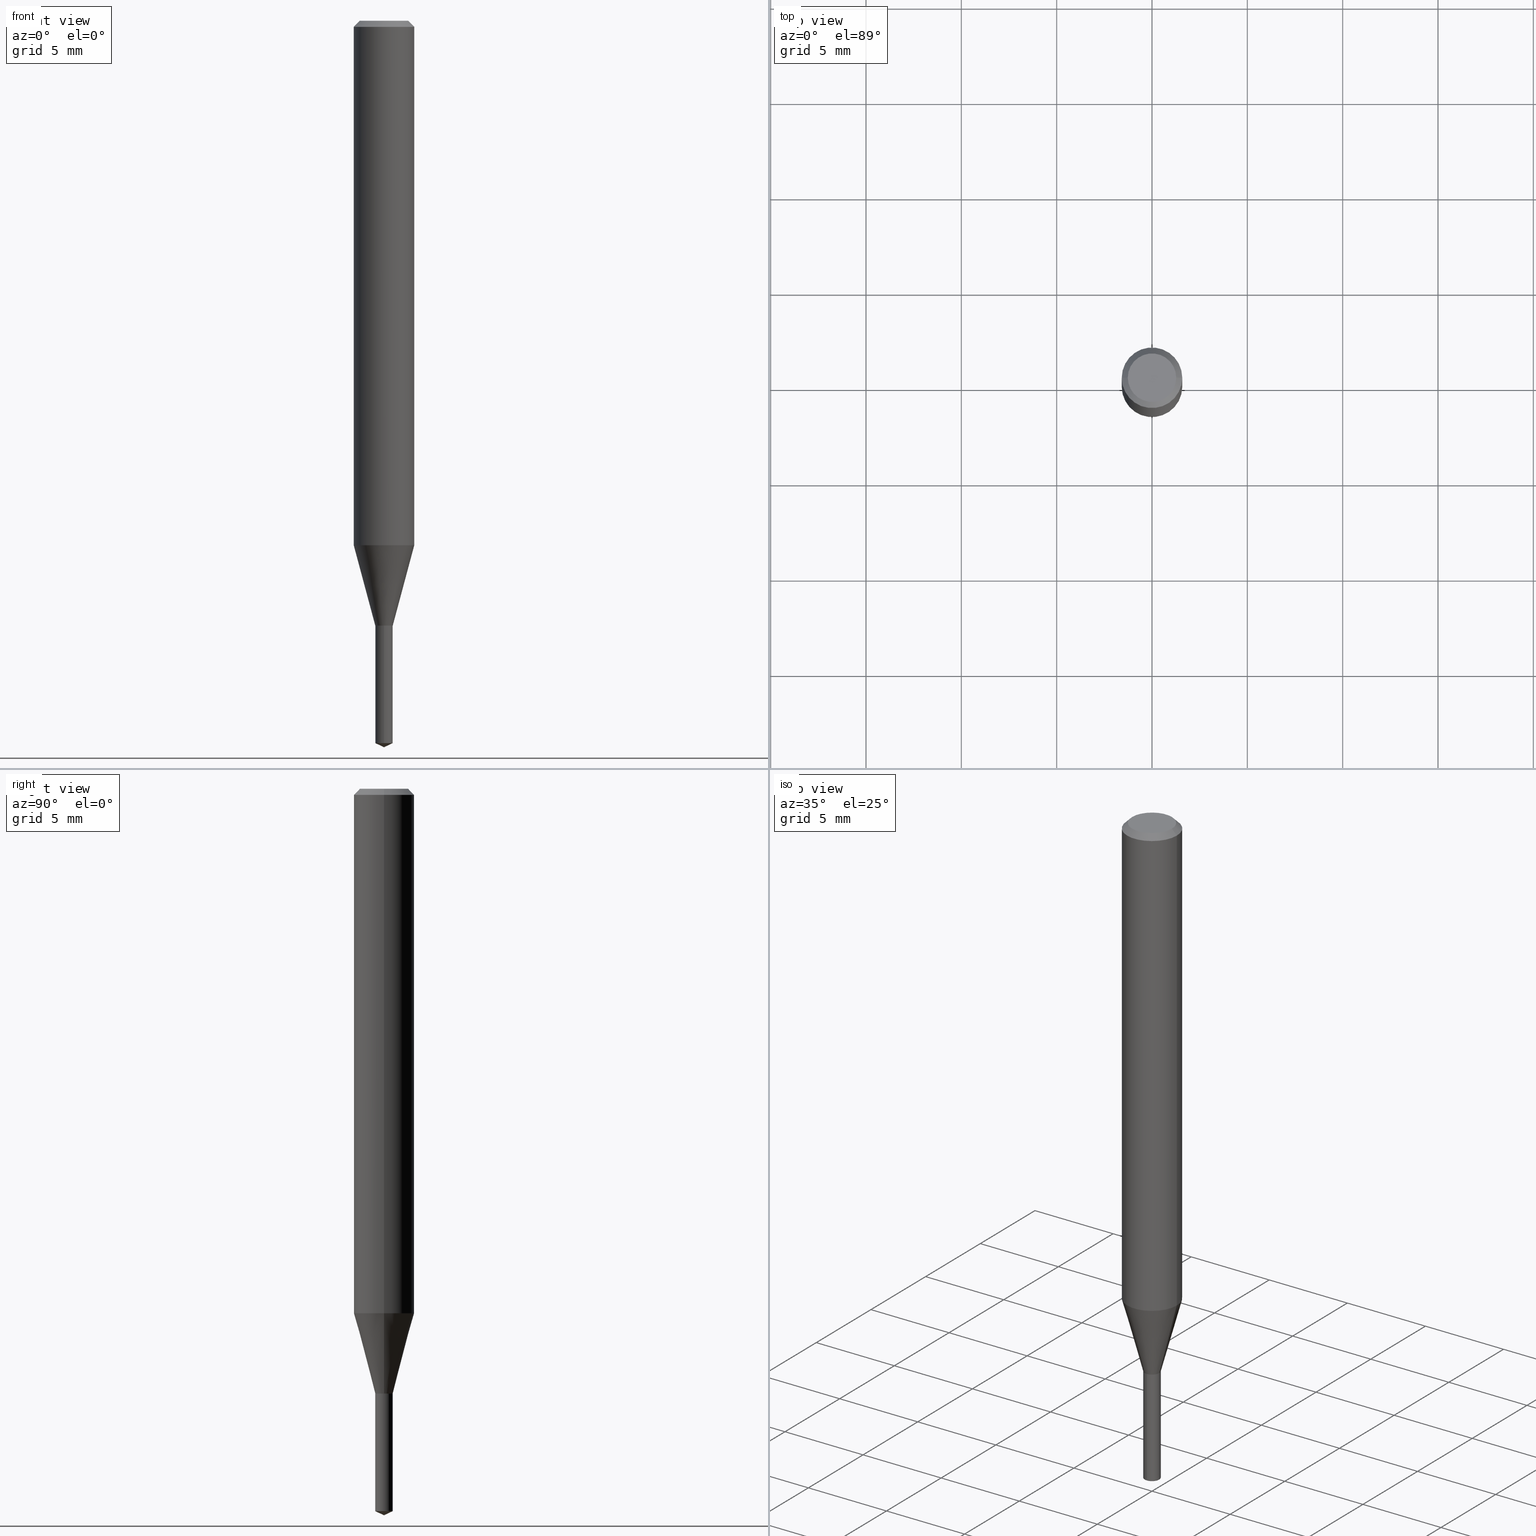
[diagram: canonical four-view strip — front | top / right | iso, engineering-drawing reading convention]
A machine part, canonical four-view strip (front | top / right | iso — engineering-drawing reading convention). The complete STEP part file that produces these views, byte-faithful:
ISO-10303-21;
HEADER;
FILE_DESCRIPTION (( 'STEP AP203' ),
    '1' );
FILE_NAME ('07146.STEP',
    '2024-04-23T19:43:46',
    ( '' ),
    ( '' ),
    'SwSTEP 2.0',
    'SolidWorks 2023',
    '' );
FILE_SCHEMA (( 'CONFIG_CONTROL_DESIGN' ));
ENDSEC;

DATA;
#1 = ORIENTED_EDGE ( 'NONE', *, *, #238, .F. ) ;
#2 = PERSON_AND_ORGANIZATION ( #31, #451 ) ;
#3 = CALENDAR_DATE ( 2024, 23, 4 ) ;
#4 = VECTOR ( 'NONE', #106, 39.37007874015748854 ) ;
#5 = EDGE_CURVE ( 'NONE', #13, #95, #232, .T. ) ;
#6 = DIRECTION ( 'NONE',  ( 1.000000000000000000, -6.982962677686265922E-15, 0.000000000000000000 ) ) ;
#7 = AXIS2_PLACEMENT_3D ( 'NONE', #151, #372, #6 ) ;
#8 = ORIENTED_EDGE ( 'NONE', *, *, #94, .F. ) ;
#9 = DIRECTION ( 'NONE',  ( 0.000000000000000000, 0.000000000000000000, 1.000000000000000000 ) ) ;
#10 = EDGE_LOOP ( 'NONE', ( #444, #199, #452, #407 ) ) ;
#11 = MANIFOLD_SOLID_BREP ( 'Body-Move/Copy2[1]', #351 ) ;
#12 = DATE_TIME_ROLE ( 'classification_date' ) ;
#13 = VERTEX_POINT ( 'NONE', #282 ) ;
#14 = CIRCLE ( 'NONE', #423, 0.06250000000000012490 ) ;
#15 = AXIS2_PLACEMENT_3D ( 'NONE', #175, #21, #324 ) ;
#16 = FACE_OUTER_BOUND ( 'NONE', #490, .T. ) ;
#17 = CYLINDRICAL_SURFACE ( 'NONE', #450, 0.06250000000000006939 ) ;
#18 = SHAPE_DEFINITION_REPRESENTATION ( #91, #93 ) ;
#19 = CYLINDRICAL_SURFACE ( 'NONE', #328, 0.01799999999999999864 ) ;
#20 = EDGE_CURVE ( 'NONE', #375, #119, #49, .T. ) ;
#21 = DIRECTION ( 'NONE',  ( -2.445468806185136597E-29, 3.491481338843145583E-15, 1.000000000000000000 ) ) ;
#22 = AXIS2_PLACEMENT_3D ( 'NONE', #299, #395, #476 ) ;
#23 = DIRECTION ( 'NONE',  ( -2.445468806185136597E-29, 3.491481338843145583E-15, 1.000000000000000000 ) ) ;
#24 = CARTESIAN_POINT ( 'NONE',  ( -0.01800000000000000558, -4.232962499778271317E-15, -1.249000000000000332 ) ) ;
#25 = EDGE_CURVE ( 'NONE', #162, #200, #447, .T. ) ;
#26 = ORIENTED_EDGE ( 'NONE', *, *, #67, .T. ) ;
#27 = CARTESIAN_POINT ( 'NONE',  ( 3.664436846372539659E-29, -5.242615654312978645E-15, -1.500000000000000222 ) ) ;
#28 = CIRCLE ( 'NONE', #112, 0.04999999999999999584 ) ;
#29 = DIRECTION ( 'NONE',  ( -2.445468806185136597E-29, 3.491481338843145583E-15, 1.000000000000000000 ) ) ;
#30 = LINE ( 'NONE', #37, #368 ) ;
#31 = PERSON ( 'UNSPECIFIED', 'UNSPECIFIED', 'UNSPECIFIED', ('UNSPECIFIED'), ('UNSPECIFIED'), ('UNSPECIFIED') ) ;
#32 = ORIENTED_EDGE ( 'NONE', *, *, #316, .T. ) ;
#33 = CARTESIAN_POINT ( 'NONE',  ( 0.01800000000000000558, -4.486553520413442454E-15, -1.249000000000000332 ) ) ;
#34 = ADVANCED_FACE ( 'NONE', ( #105 ), #460, .T. ) ;
#35 = CARTESIAN_POINT ( 'NONE',  ( -0.01800000000000000558, -3.971974269699745884E-15, -1.249000000000000332 ) ) ;
#36 = AXIS2_PLACEMENT_3D ( 'NONE', #370, #443, #271 ) ;
#37 = CARTESIAN_POINT ( 'NONE',  ( 1.278976924368449190E-16, 0.01799999999999615796, -1.100000000000000089 ) ) ;
#38 = ORIENTED_EDGE ( 'NONE', *, *, #406, .F. ) ;
#39 = DATE_AND_TIME ( #152, #212 ) ;
#40 = ORIENTED_EDGE ( 'NONE', *, *, #20, .T. ) ;
#41 = CC_DESIGN_PERSON_AND_ORGANIZATION_ASSIGNMENT ( #348, #410, ( #263 ) ) ;
#42 = PERSON_AND_ORGANIZATION ( #31, #451 ) ;
#43 = EDGE_CURVE ( 'NONE', #404, #333, #14, .T. ) ;
#44 = CC_DESIGN_SECURITY_CLASSIFICATION ( #263, ( #147 ) ) ;
#45 = VERTEX_POINT ( 'NONE', #228 ) ;
#46 = ADVANCED_FACE ( 'NONE', ( #81 ), #252, .T. ) ;
#47 = ORIENTED_EDGE ( 'NONE', *, *, #142, .F. ) ;
#48 = DIRECTION ( 'NONE',  ( -2.445468806185136597E-29, 3.491481338843145583E-15, 1.000000000000000000 ) ) ;
#49 = CIRCLE ( 'NONE', #448, 0.01799999999999998476 ) ;
#50 = AXIS2_PLACEMENT_3D ( 'NONE', #391, #354, #217 ) ;
#51 = CARTESIAN_POINT ( 'NONE',  ( 3.664436846372539659E-29, -5.242615654312978645E-15, -1.500000000000000222 ) ) ;
#52 = ORIENTED_EDGE ( 'NONE', *, *, #125, .T. ) ;
#53 = PERSON_AND_ORGANIZATION ( #31, #451 ) ;
#54 = CC_DESIGN_PERSON_AND_ORGANIZATION_ASSIGNMENT ( #53, #179, ( #57 ) ) ;
#55 = ADVANCED_FACE ( 'NONE', ( #432 ), #155, .T. ) ;
#56 = DIRECTION ( 'NONE',  ( -2.445468806185136877E-29, 3.491481338843145188E-15, 1.000000000000000000 ) ) ;
#57 = PRODUCT ( '07146', '07146', '', ( #267 ) ) ;
#58 = CARTESIAN_POINT ( 'NONE',  ( -0.01750000000000000167, -3.716284493969442853E-15, -1.100000000000000089 ) ) ;
#59 = CC_DESIGN_DATE_AND_TIME_ASSIGNMENT ( #449, #402, ( #455 ) ) ;
#60 = DIRECTION ( 'NONE',  ( -2.445468806185136877E-29, 3.491481338843145188E-15, 1.000000000000000000 ) ) ;
#61 = VECTOR ( 'NONE', #56, 39.37007874015748143 ) ;
#62 = DIRECTION ( 'NONE',  ( 1.000000000000000000, -6.982962677686250144E-15, 0.000000000000000000 ) ) ;
#63 = EDGE_CURVE ( 'NONE', #182, #158, #465, .T. ) ;
#64 = CARTESIAN_POINT ( 'NONE',  ( 3.054390538925236264E-29, -4.360860192215089464E-15, -1.249000000000000332 ) ) ;
#65 = CARTESIAN_POINT ( 'NONE',  ( 2.688792952400557567E-29, -3.838883732058038598E-15, -1.099499999999999922 ) ) ;
#66 = CIRCLE ( 'NONE', #389, 0.01800000000000000211 ) ;
#67 = EDGE_CURVE ( 'NONE', #254, #382, #461, .T. ) ;
#68 = FACE_OUTER_BOUND ( 'NONE', #381, .T. ) ;
#69 = ORIENTED_EDGE ( 'NONE', *, *, #280, .T. ) ;
#70 = DIRECTION ( 'NONE',  ( -0.7071067811865453523, 2.468850131082234184E-15, -0.7071067811865496822 ) ) ;
#71 = APPROVAL_DATE_TIME ( #481, #216 ) ;
#72 = CARTESIAN_POINT ( 'NONE',  ( 0.06250000000000001388, -4.800786840909313294E-16, -0.01250000000000008916 ) ) ;
#73 = ORIENTED_EDGE ( 'NONE', *, *, #281, .T. ) ;
#74 = VECTOR ( 'NONE', #330, 39.37007874015748854 ) ;
#75 = CC_DESIGN_PERSON_AND_ORGANIZATION_ASSIGNMENT ( #201, #237, ( #147 ) ) ;
#76 = CARTESIAN_POINT ( 'NONE',  ( 2.688792952400557567E-29, -3.838883732058038598E-15, -1.099499999999999922 ) ) ;
#77 = EDGE_CURVE ( 'NONE', #254, #119, #161, .T. ) ;
#78 = DIRECTION ( 'NONE',  ( -2.445468806185136597E-29, 3.491481338843145583E-15, 1.000000000000000000 ) ) ;
#79 =( NAMED_UNIT ( * ) SI_UNIT ( $, .STERADIAN. ) SOLID_ANGLE_UNIT ( ) );
#80 = ORIENTED_EDGE ( 'NONE', *, *, #406, .T. ) ;
#81 = FACE_OUTER_BOUND ( 'NONE', #260, .T. ) ;
#82 = APPROVAL_ROLE ( '' ) ;
#83 = AXIS2_PLACEMENT_3D ( 'NONE', #266, #229, #334 ) ;
#84 = DIRECTION ( 'NONE',  ( 1.000000000000000000, -6.982962677686276966E-15, 0.000000000000000000 ) ) ;
#85 = CC_DESIGN_PERSON_AND_ORGANIZATION_ASSIGNMENT ( #2, #306, ( #455 ) ) ;
#86 = DIRECTION ( 'NONE',  ( -2.445468806185136597E-29, 3.491481338843145583E-15, 1.000000000000000000 ) ) ;
#87 = AXIS2_PLACEMENT_3D ( 'NONE', #319, #126, #284 ) ;
#88 = CIRCLE ( 'NONE', #7, 0.06250000000000001388 ) ;
#89 = CARTESIAN_POINT ( 'NONE',  ( 2.690015686803650369E-29, -3.840629472727460101E-15, -1.100000000000000089 ) ) ;
#90 = EDGE_CURVE ( 'NONE', #158, #182, #28, .T. ) ;
#91 = PRODUCT_DEFINITION_SHAPE ( 'NONE', 'NONE',  #455 ) ;
#92 = UNCERTAINTY_MEASURE_WITH_UNIT (LENGTH_MEASURE( 1.000000000000000082E-05 ), #283, 'distance_accuracy_value', 'NONE');
#93 = ADVANCED_BREP_SHAPE_REPRESENTATION ( '07146', ( #11, #485, #349 ), #286 ) ;
#94 = EDGE_CURVE ( 'NONE', #95, #119, #209, .T. ) ;
#95 = VERTEX_POINT ( 'NONE', #218 ) ;
#96 = PERSON_AND_ORGANIZATION ( #31, #451 ) ;
#97 = DIRECTION ( 'NONE',  ( -2.445468806185136597E-29, 3.491481338843145583E-15, 1.000000000000000000 ) ) ;
#98 = ORIENTED_EDGE ( 'NONE', *, *, #43, .F. ) ;
#99 = DIRECTION ( 'NONE',  ( -6.328713451373426965E-15, -0.9063077870366565980, 0.4226182617406848419 ) ) ;
#100 = ORIENTED_EDGE ( 'NONE', *, *, #417, .F. ) ;
#101 = CARTESIAN_POINT ( 'NONE',  ( 0.06250000000000001388, -4.724246415962604812E-16, -0.01250000000000008916 ) ) ;
#102 = VECTOR ( 'NONE', #489, 39.37007874015748143 ) ;
#103 = ADVANCED_FACE ( 'NONE', ( #414 ), #305, .F. ) ;
#104 = ORIENTED_EDGE ( 'NONE', *, *, #136, .T. ) ;
#105 = FACE_OUTER_BOUND ( 'NONE', #308, .T. ) ;
#106 = DIRECTION ( 'NONE',  ( -0.2588190451025281225, 5.211531920934590485E-15, 0.9659258262890662028 ) ) ;
#107 = COORDINATED_UNIVERSAL_TIME_OFFSET ( 5, 0, .BEHIND. ) ;
#108 = CARTESIAN_POINT ( 'NONE',  ( 3.670009284250152623E-29, -5.234704973442197256E-15, -1.500000000000000222 ) ) ;
#109 = CARTESIAN_POINT ( 'NONE',  ( 0.06250000000000006939, -4.364351673553921624E-16, 3.047610484872463374E-30 ) ) ;
#110 = ORIENTED_EDGE ( 'NONE', *, *, #25, .F. ) ;
#111 = ORIENTED_EDGE ( 'NONE', *, *, #184, .T. ) ;
#112 = AXIS2_PLACEMENT_3D ( 'NONE', #289, #251, #213 ) ;
#113 = ADVANCED_FACE ( 'NONE', ( #408 ), #473, .T. ) ;
#114 = APPROVAL_STATUS ( 'not_yet_approved' ) ;
#115 = FACE_OUTER_BOUND ( 'NONE', #441, .T. ) ;
#116 = APPROVAL ( #344, 'UNSPECIFIED' ) ;
#117 = ORIENTED_EDGE ( 'NONE', *, *, #250, .F. ) ;
#118 = ADVANCED_FACE ( 'NONE', ( #188 ), #403, .F. ) ;
#119 = VERTEX_POINT ( 'NONE', #425 ) ;
#120 = DIRECTION ( 'NONE',  ( -2.442957897581693293E-29, 3.495077102875319228E-15, 1.000000000000000000 ) ) ;
#121 = ORIENTED_EDGE ( 'NONE', *, *, #5, .T. ) ;
#122 = ADVANCED_FACE ( 'NONE', ( #244 ), #19, .T. ) ;
#123 = CARTESIAN_POINT ( 'NONE',  ( 3.054390538925236264E-29, -4.360860192215089464E-15, -1.249000000000000332 ) ) ;
#124 = AXIS2_PLACEMENT_3D ( 'NONE', #64, #97, #62 ) ;
#125 = EDGE_CURVE ( 'NONE', #200, #202, #272, .T. ) ;
#126 = DIRECTION ( 'NONE',  ( -2.438088387897960049E-29, 3.491481338843145188E-15, 1.000000000000000000 ) ) ;
#127 = DIRECTION ( 'NONE',  ( -0.7071067811865112684, 7.493145998870223209E-15, 0.7071067811865837660 ) ) ;
#128 = ORIENTED_EDGE ( 'NONE', *, *, #142, .T. ) ;
#129 = AXIS2_PLACEMENT_3D ( 'NONE', #140, #23, #470 ) ;
#130 = CC_DESIGN_APPROVAL ( #116, ( #455 ) ) ;
#131 = ADVANCED_FACE ( 'NONE', ( #422 ), #17, .T. ) ;
#132 = ADVANCED_FACE ( 'NONE', ( #327 ), #246, .T. ) ;
#133 = VERTEX_POINT ( 'NONE', #385 ) ;
#134 = DIRECTION ( 'NONE',  ( -2.445468806185136597E-29, 3.491481338843145583E-15, 1.000000000000000000 ) ) ;
#135 = DIRECTION ( 'NONE',  ( 6.982962677686265922E-15, 1.000000000000000000, -3.495077102875319228E-15 ) ) ;
#136 = EDGE_CURVE ( 'NONE', #13, #375, #208, .T. ) ;
#137 = CARTESIAN_POINT ( 'NONE',  ( 3.646693786264862910E-29, -5.209324251937156062E-15, -1.491606462153210577 ) ) ;
#138 = CONICAL_SURFACE ( 'NONE', #211, 0.01750000000000000167, 0.7853981633973970977 ) ;
#139 = CARTESIAN_POINT ( 'NONE',  ( -0.01799999999999998476, -3.971974269699745884E-15, -1.099499999999999922 ) ) ;
#140 = CARTESIAN_POINT ( 'NONE',  ( 3.054390538925236264E-29, -4.360860192215089464E-15, -1.249000000000000332 ) ) ;
#141 = DIRECTION ( 'NONE',  ( -2.442957897581693293E-29, 3.495077102875318834E-15, 1.000000000000000000 ) ) ;
#142 = EDGE_CURVE ( 'NONE', #333, #404, #440, .T. ) ;
#143 = PERSON_AND_ORGANIZATION ( #31, #451 ) ;
#144 = ORIENTED_EDGE ( 'NONE', *, *, #136, .F. ) ;
#145 = DIRECTION ( 'NONE',  ( 1.000000000000000000, -6.982962677686276966E-15, 0.000000000000000000 ) ) ;
#146 = CIRCLE ( 'NONE', #203, 0.01799999999999999864 ) ;
#147 = PRODUCT_DEFINITION_FORMATION_WITH_SPECIFIED_SOURCE ( 'ANY', '', #57, .NOT_KNOWN. ) ;
#148 = DIRECTION ( 'NONE',  ( -6.982962677686266711E-15, -1.000000000000000000, 3.520397390770289392E-15 ) ) ;
#149 = COORDINATED_UNIVERSAL_TIME_OFFSET ( 5, 0, .BEHIND. ) ;
#150 = DIRECTION ( 'NONE',  ( -2.445468806185136877E-29, 3.491481338843145188E-15, 1.000000000000000000 ) ) ;
#151 = CARTESIAN_POINT ( 'NONE',  ( 3.056836007731442729E-31, -4.364351673553962300E-17, -0.01250000000000008916 ) ) ;
#152 = CALENDAR_DATE ( 2024, 23, 4 ) ;
#153 = ORIENTED_EDGE ( 'NONE', *, *, #287, .F. ) ;
#154 = APPROVAL_STATUS ( 'not_yet_approved' ) ;
#155 = CONICAL_SURFACE ( 'NONE', #172, 0.01800000000000000558, 0.2617993877991570684 ) ;
#156 = AXIS2_PLACEMENT_3D ( 'NONE', #427, #288, #171 ) ;
#157 = APPROVAL_PERSON_ORGANIZATION ( #413, #474, #82 ) ;
#158 = VERTEX_POINT ( 'NONE', #384 ) ;
#159 = DIRECTION ( 'NONE',  ( 1.000000000000000000, 0.000000000000000000, 0.000000000000000000 ) ) ;
#160 = ORIENTED_EDGE ( 'NONE', *, *, #275, .T. ) ;
#161 = LINE ( 'NONE', #462, #409 ) ;
#162 = VERTEX_POINT ( 'NONE', #51 ) ;
#163 = DIRECTION ( 'NONE',  ( -6.982962677686265133E-15, -1.000000000000000000, 0.000000000000000000 ) ) ;
#164 = VECTOR ( 'NONE', #127, 39.37007874015748143 ) ;
#165 = AXIS2_PLACEMENT_3D ( 'NONE', #297, #436, #364 ) ;
#166 = PLANE ( 'NONE',  #87 ) ;
#167 = ORIENTED_EDGE ( 'NONE', *, *, #316, .F. ) ;
#168 = EDGE_CURVE ( 'NONE', #382, #375, #214, .T. ) ;
#169 = CARTESIAN_POINT ( 'NONE',  ( -0.01799999999999999517, 1.278976924368179991E-16, -8.854083162458827436E-31 ) ) ;
#170 = CARTESIAN_POINT ( 'NONE',  ( 2.690015686803650369E-29, -3.840629472727460101E-15, -1.100000000000000089 ) ) ;
#171 = DIRECTION ( 'NONE',  ( 1.000000000000000000, -6.982962677686276966E-15, 0.000000000000000000 ) ) ;
#172 = AXIS2_PLACEMENT_3D ( 'NONE', #123, #318, #360 ) ;
#173 = PRODUCT_RELATED_PRODUCT_CATEGORY ( 'detail', '', ( #57 ) ) ;
#174 = CIRCLE ( 'NONE', #486, 0.01750000000000000167 ) ;
#175 = CARTESIAN_POINT ( 'NONE',  ( 3.056836007731442729E-31, -4.364351673553962300E-17, -0.01250000000000008916 ) ) ;
#176 = DIRECTION ( 'NONE',  ( 1.000000000000000000, -6.982962677686264344E-15, 0.000000000000000000 ) ) ;
#177 = CARTESIAN_POINT ( 'NONE',  ( 2.690015686803650369E-29, -3.840629472727460101E-15, -1.100000000000000089 ) ) ;
#178 = DIRECTION ( 'NONE',  ( 1.000000000000000000, -6.982962677686266711E-15, 4.876176775795935793E-29 ) ) ;
#179 = PERSON_AND_ORGANIZATION_ROLE ( 'design_owner' ) ;
#180 = ORIENTED_EDGE ( 'NONE', *, *, #280, .F. ) ;
#181 = DIRECTION ( 'NONE',  ( -2.442957897581693293E-29, 3.495077102875319228E-15, 1.000000000000000000 ) ) ;
#182 = VERTEX_POINT ( 'NONE', #210 ) ;
#183 = CARTESIAN_POINT ( 'NONE',  ( -8.265746106709734507E-48, 1.180129479067563789E-33, 3.380025165646692144E-19 ) ) ;
#184 = EDGE_CURVE ( 'NONE', #300, #463, #356, .T. ) ;
#185 = DIRECTION ( 'NONE',  ( 1.000000000000000000, -6.982962677686264344E-15, 0.000000000000000000 ) ) ;
#186 = DIRECTION ( 'NONE',  ( 0.7071067811865453523, -7.319954787623248157E-15, -0.7071067811865496822 ) ) ;
#187 = ORIENTED_EDGE ( 'NONE', *, *, #424, .F. ) ;
#188 = FACE_OUTER_BOUND ( 'NONE', #310, .T. ) ;
#189 = DIRECTION ( 'NONE',  ( 1.000000000000000000, -6.982962677686258822E-15, 0.000000000000000000 ) ) ;
#190 = EDGE_LOOP ( 'NONE', ( #265, #104, #239, #8 ) ) ;
#191 = FACE_OUTER_BOUND ( 'NONE', #223, .T. ) ;
#192 = AXIS2_PLACEMENT_3D ( 'NONE', #419, #383, #84 ) ;
#193 = CIRCLE ( 'NONE', #285, 0.01799999999999998476 ) ;
#194 = CYLINDRICAL_SURFACE ( 'NONE', #227, 0.06250000000000006939 ) ;
#195 = ADVANCED_FACE ( 'NONE', ( #469 ), #138, .T. ) ;
#196 = ORIENTED_EDGE ( 'NONE', *, *, #125, .F. ) ;
#197 = APPROVAL_DATE_TIME ( #39, #116 ) ;
#198 = CARTESIAN_POINT ( 'NONE',  ( 0.000000000000000000, 0.000000000000000000, 0.000000000000000000 ) ) ;
#199 = ORIENTED_EDGE ( 'NONE', *, *, #43, .T. ) ;
#200 = VERTEX_POINT ( 'NONE', #290 ) ;
#201 = PERSON_AND_ORGANIZATION ( #31, #451 ) ;
#202 = VERTEX_POINT ( 'NONE', #255 ) ;
#203 = AXIS2_PLACEMENT_3D ( 'NONE', #361, #256, #225 ) ;
#204 = ORIENTED_EDGE ( 'NONE', *, *, #322, .F. ) ;
#205 = DIRECTION ( 'NONE',  ( 1.000000000000000000, -6.982962677686258822E-15, 0.000000000000000000 ) ) ;
#206 = AXIS2_PLACEMENT_3D ( 'NONE', #230, #350, #135 ) ;
#207 = ADVANCED_FACE ( 'NONE', ( #16 ), #166, .F. ) ;
#208 = LINE ( 'NONE', #58, #164 ) ;
#209 = LINE ( 'NONE', #353, #475 ) ;
#210 = CARTESIAN_POINT ( 'NONE',  ( 0.04999999999999999584, -4.077247707424184705E-16, 3.380025165673154903E-19 ) ) ;
#211 = AXIS2_PLACEMENT_3D ( 'NONE', #170, #134, #468 ) ;
#212 = LOCAL_TIME ( 15, 43, 46.00000000000000000, #149 ) ;
#213 = DIRECTION ( 'NONE',  ( 1.000000000000000000, -6.982962677686265922E-15, 4.876194921942043128E-29 ) ) ;
#214 = LINE ( 'NONE', #169, #61 ) ;
#215 = LINE ( 'NONE', #405, #253 ) ;
#216 = APPROVAL ( #114, 'UNSPECIFIED' ) ;
#217 = DIRECTION ( 'NONE',  ( -6.982962677686265133E-15, -1.000000000000000000, 0.000000000000000000 ) ) ;
#218 = CARTESIAN_POINT ( 'NONE',  ( 0.01750000000000000167, -3.962831319586970084E-15, -1.100000000000000089 ) ) ;
#219 = CYLINDRICAL_SURFACE ( 'NONE', #165, 0.01799999999999999517 ) ;
#220 = EDGE_LOOP ( 'NONE', ( #312, #315, #338, #378 ) ) ;
#221 = DIRECTION ( 'NONE',  ( 1.000000000000000000, -6.982962677686265922E-15, 4.876194921942043128E-29 ) ) ;
#222 = AXIS2_PLACEMENT_3D ( 'NONE', #247, #401, #148 ) ;
#223 = EDGE_LOOP ( 'NONE', ( #302, #458, #40, #264 ) ) ;
#224 = CARTESIAN_POINT ( 'NONE',  ( 2.648256223356403194E-29, -3.781008026329371675E-15, -1.082923739063189839 ) ) ;
#225 = DIRECTION ( 'NONE',  ( -6.982962677686265133E-15, -1.000000000000000000, 0.000000000000000000 ) ) ;
#226 = VECTOR ( 'NONE', #150, 39.37007874015748143 ) ;
#227 = AXIS2_PLACEMENT_3D ( 'NONE', #198, #78, #374 ) ;
#228 = CARTESIAN_POINT ( 'NONE',  ( 1.278976924368545333E-16, 0.01799999999999615796, -1.100000000000000089 ) ) ;
#229 = DIRECTION ( 'NONE',  ( -2.445468806185136597E-29, 3.491481338843145583E-15, 1.000000000000000000 ) ) ;
#230 = CARTESIAN_POINT ( 'NONE',  ( 2.690015686803650369E-29, -3.840629472727460101E-15, -1.100000000000000089 ) ) ;
#231 = CARTESIAN_POINT ( 'NONE',  ( -0.06250000000000001388, -1.468236561682391621E-15, -0.01250000000000008916 ) ) ;
#232 = CIRCLE ( 'NONE', #192, 0.01750000000000000167 ) ;
#233 = AXIS2_PLACEMENT_3D ( 'NONE', #183, #257, #221 ) ;
#234 = APPROVAL_ROLE ( '' ) ;
#235 =( LENGTH_UNIT ( ) NAMED_UNIT ( * ) SI_UNIT ( $, .METRE. ) );
#236 = SECURITY_CLASSIFICATION_LEVEL ( 'unclassified' ) ;
#237 = PERSON_AND_ORGANIZATION_ROLE ( 'design_supplier' ) ;
#238 = EDGE_CURVE ( 'NONE', #45, #133, #146, .T. ) ;
#239 = ORIENTED_EDGE ( 'NONE', *, *, #321, .F. ) ;
#240 = AXIS2_PLACEMENT_3D ( 'NONE', #388, #464, #176 ) ;
#241 = ORIENTED_EDGE ( 'NONE', *, *, #238, .T. ) ;
#242 = ORIENTED_EDGE ( 'NONE', *, *, #250, .T. ) ;
#243 = EDGE_LOOP ( 'NONE', ( #355, #277, #117, #180 ) ) ;
#244 = FACE_OUTER_BOUND ( 'NONE', #243, .T. ) ;
#245 = ORIENTED_EDGE ( 'NONE', *, *, #63, .F. ) ;
#246 = CONICAL_SURFACE ( 'NONE', #156, 0.01750000000000000167, 0.7853981633973970977 ) ;
#247 = CARTESIAN_POINT ( 'NONE',  ( -9.251224594084451282E-28, 1.323628004292452236E-13, 37.87007874015748143 ) ) ;
#248 = APPROVAL_DATE_TIME ( #387, #474 ) ;
#249 = DIRECTION ( 'NONE',  ( -6.982962677686265133E-15, -1.000000000000000000, 0.000000000000000000 ) ) ;
#250 = EDGE_CURVE ( 'NONE', #133, #45, #430, .T. ) ;
#251 = DIRECTION ( 'NONE',  ( -2.445468806185136597E-29, 3.491481338843145583E-15, 1.000000000000000000 ) ) ;
#252 = CONICAL_SURFACE ( 'NONE', #222, 84.42940631927828576, 1.134464013796333770 ) ;
#253 = VECTOR ( 'NONE', #70, 39.37007874015748143 ) ;
#254 = VERTEX_POINT ( 'NONE', #480 ) ;
#255 = CARTESIAN_POINT ( 'NONE',  ( -1.256933281983163574E-16, -0.01800000000000521669, -1.491606462153210577 ) ) ;
#256 = DIRECTION ( 'NONE',  ( -2.442957897581693293E-29, 3.495077102875318834E-15, 1.000000000000000000 ) ) ;
#257 = DIRECTION ( 'NONE',  ( -2.445468806185136597E-29, 3.491481338843145583E-15, 1.000000000000000000 ) ) ;
#258 = CARTESIAN_POINT ( 'NONE',  ( -1.256933281983258730E-16, -0.01800000000000383932, -1.100000000000000089 ) ) ;
#259 = EDGE_CURVE ( 'NONE', #254, #333, #336, .T. ) ;
#260 = EDGE_LOOP ( 'NONE', ( #110, #160, #196 ) ) ;
#261 = ORIENTED_EDGE ( 'NONE', *, *, #20, .F. ) ;
#262 = DIRECTION ( 'NONE',  ( -6.982962677686265133E-15, -1.000000000000000000, 0.000000000000000000 ) ) ;
#263 = SECURITY_CLASSIFICATION ( '', '', #236 ) ;
#264 = ORIENTED_EDGE ( 'NONE', *, *, #77, .F. ) ;
#265 = ORIENTED_EDGE ( 'NONE', *, *, #365, .T. ) ;
#266 = CARTESIAN_POINT ( 'NONE',  ( 0.000000000000000000, 0.000000000000000000, 0.000000000000000000 ) ) ;
#267 = MECHANICAL_CONTEXT ( 'NONE', #445, 'mechanical' ) ;
#268 = ORIENTED_EDGE ( 'NONE', *, *, #365, .F. ) ;
#269 = COORDINATED_UNIVERSAL_TIME_OFFSET ( 5, 0, .BEHIND. ) ;
#270 = CYLINDRICAL_SURFACE ( 'NONE', #83, 0.01799999999999999517 ) ;
#271 = DIRECTION ( 'NONE',  ( -1.000000000000000000, 6.982962677686265922E-15, -4.876176775795935793E-29 ) ) ;
#272 = CIRCLE ( 'NONE', #50, 0.01800000000000000211 ) ;
#273 = LOCAL_TIME ( 15, 43, 46.00000000000000000, #107 ) ;
#274 = CC_DESIGN_APPROVAL ( #216, ( #147 ) ) ;
#275 = EDGE_CURVE ( 'NONE', #162, #202, #301, .T. ) ;
#276 = PERSON_AND_ORGANIZATION_ROLE ( 'creator' ) ;
#277 = ORIENTED_EDGE ( 'NONE', *, *, #417, .T. ) ;
#278 = CLOSED_SHELL ( 'NONE', ( #132, #113, #421, #34, #416, #357, #55, #131, #483, #103, #207, #195 ) ) ;
#279 = DIRECTION ( 'NONE',  ( -1.000000000000000000, 6.982962677686265922E-15, 0.000000000000000000 ) ) ;
#280 = EDGE_CURVE ( 'NONE', #202, #133, #438, .T. ) ;
#281 = EDGE_CURVE ( 'NONE', #182, #463, #359, .T. ) ;
#282 = CARTESIAN_POINT ( 'NONE',  ( -0.01750000000000000167, -3.713635266795331652E-15, -1.100000000000000089 ) ) ;
#283 =( CONVERSION_BASED_UNIT ( 'INCH', #345 ) LENGTH_UNIT ( ) NAMED_UNIT ( #341 ) );
#284 = DIRECTION ( 'NONE',  ( 1.000000000000000000, -6.982962677686265922E-15, 4.876176775795935793E-29 ) ) ;
#285 = AXIS2_PLACEMENT_3D ( 'NONE', #65, #478, #189 ) ;
#286 =( GEOMETRIC_REPRESENTATION_CONTEXT ( 3 ) GLOBAL_UNCERTAINTY_ASSIGNED_CONTEXT ( ( #92 ) ) GLOBAL_UNIT_ASSIGNED_CONTEXT ( ( #283, #459, #79 ) ) REPRESENTATION_CONTEXT ( 'NONE', 'WORKASPACE' ) );
#287 = EDGE_CURVE ( 'NONE', #333, #463, #326, .T. ) ;
#288 = DIRECTION ( 'NONE',  ( -2.445468806185136597E-29, 3.491481338843145583E-15, 1.000000000000000000 ) ) ;
#289 = CARTESIAN_POINT ( 'NONE',  ( -8.265746106709734507E-48, 1.180129479067563789E-33, 3.380025165646692144E-19 ) ) ;
#290 = CARTESIAN_POINT ( 'NONE',  ( 1.278976924368545333E-16, 0.01799999999999479447, -1.491606462153210577 ) ) ;
#291 = CARTESIAN_POINT ( 'NONE',  ( -9.251224594084451282E-28, 1.323628004292452236E-13, 37.87007874015748143 ) ) ;
#292 = ORIENTED_EDGE ( 'NONE', *, *, #259, .F. ) ;
#293 = APPLICATION_CONTEXT ( 'configuration controlled 3d designs of mechanical parts and assemblies' ) ;
#294 = ORIENTED_EDGE ( 'NONE', *, *, #390, .T. ) ;
#295 = EDGE_CURVE ( 'NONE', #404, #300, #471, .T. ) ;
#296 = CARTESIAN_POINT ( 'NONE',  ( 3.054390538925236264E-29, -4.360860192215089464E-15, -1.249000000000000332 ) ) ;
#297 = CARTESIAN_POINT ( 'NONE',  ( 0.000000000000000000, 0.000000000000000000, 0.000000000000000000 ) ) ;
#298 = ORIENTED_EDGE ( 'NONE', *, *, #295, .T. ) ;
#299 = CARTESIAN_POINT ( 'NONE',  ( 3.056836007731442729E-31, -4.364351673553962300E-17, -0.01250000000000008916 ) ) ;
#300 = VERTEX_POINT ( 'NONE', #231 ) ;
#301 = LINE ( 'NONE', #27, #362 ) ;
#302 = ORIENTED_EDGE ( 'NONE', *, *, #390, .F. ) ;
#303 = CARTESIAN_POINT ( 'NONE',  ( -0.06250000000000012490, -3.336918816479307875E-15, -1.082923739063189839 ) ) ;
#304 = CONICAL_SURFACE ( 'NONE', #379, 84.42940631927828576, 1.134464013796333770 ) ;
#305 = PLANE ( 'NONE',  #36 ) ;
#306 = PERSON_AND_ORGANIZATION_ROLE ( 'creator' ) ;
#307 = DIRECTION ( 'NONE',  ( -6.982962677686266711E-15, -1.000000000000000000, 3.520397390770289392E-15 ) ) ;
#308 = EDGE_LOOP ( 'NONE', ( #26, #32, #47, #292 ) ) ;
#309 = LOCAL_TIME ( 15, 43, 46.00000000000000000, #373 ) ;
#310 = EDGE_LOOP ( 'NONE', ( #242, #241 ) ) ;
#311 = CARTESIAN_POINT ( 'NONE',  ( 3.056836007731442729E-31, -4.364351673553962300E-17, -0.01250000000000008916 ) ) ;
#312 = ORIENTED_EDGE ( 'NONE', *, *, #168, .F. ) ;
#313 = APPLICATION_PROTOCOL_DEFINITION ( 'international standard', 'config_control_design', 1994, #445 ) ;
#314 = CC_DESIGN_DATE_AND_TIME_ASSIGNMENT ( #343, #12, ( #263 ) ) ;
#315 = ORIENTED_EDGE ( 'NONE', *, *, #67, .F. ) ;
#316 = EDGE_CURVE ( 'NONE', #382, #404, #367, .T. ) ;
#317 = LOCAL_TIME ( 15, 43, 46.00000000000000000, #269 ) ;
#318 = DIRECTION ( 'NONE',  ( -2.445468806185136597E-29, 3.491481338843145583E-15, 1.000000000000000000 ) ) ;
#319 = CARTESIAN_POINT ( 'NONE',  ( 2.690015686803650369E-29, -3.840629472727460101E-15, -1.100000000000000089 ) ) ;
#320 = ORIENTED_EDGE ( 'NONE', *, *, #90, .F. ) ;
#321 = EDGE_CURVE ( 'NONE', #119, #375, #193, .T. ) ;
#322 = EDGE_CURVE ( 'NONE', #202, #200, #66, .T. ) ;
#323 = AXIS2_PLACEMENT_3D ( 'NONE', #177, #141, #366 ) ;
#324 = DIRECTION ( 'NONE',  ( 1.000000000000000000, -6.982962677686265922E-15, 0.000000000000000000 ) ) ;
#325 = DIRECTION ( 'NONE',  ( 6.439704144417082418E-15, 0.9063077870366597066, 0.4226182617406785136 ) ) ;
#326 = LINE ( 'NONE', #109, #102 ) ;
#327 = FACE_OUTER_BOUND ( 'NONE', #190, .T. ) ;
#328 = AXIS2_PLACEMENT_3D ( 'NONE', #89, #429, #249 ) ;
#329 = ORIENTED_EDGE ( 'NONE', *, *, #281, .F. ) ;
#330 = DIRECTION ( 'NONE',  ( 0.2588190451025281225, 1.565188264969568128E-15, 0.9659258262890662028 ) ) ;
#331 = ORIENTED_EDGE ( 'NONE', *, *, #5, .F. ) ;
#332 = DIRECTION ( 'NONE',  ( -2.442957897581693293E-29, 3.495077102875318834E-15, 1.000000000000000000 ) ) ;
#333 = VERTEX_POINT ( 'NONE', #400 ) ;
#334 = DIRECTION ( 'NONE',  ( 1.000000000000000000, -6.982962677686266711E-15, 4.876176775795935232E-29 ) ) ;
#335 = ORIENTED_EDGE ( 'NONE', *, *, #63, .T. ) ;
#336 = LINE ( 'NONE', #33, #74 ) ;
#337 = CIRCLE ( 'NONE', #124, 0.01800000000000000558 ) ;
#338 = ORIENTED_EDGE ( 'NONE', *, *, #77, .T. ) ;
#339 = FACE_OUTER_BOUND ( 'NONE', #399, .T. ) ;
#340 = CC_DESIGN_PERSON_AND_ORGANIZATION_ASSIGNMENT ( #96, #276, ( #147 ) ) ;
#341 = DIMENSIONAL_EXPONENTS ( 1.000000000000000000, 0.000000000000000000, 0.000000000000000000, 0.000000000000000000, 0.000000000000000000, 0.000000000000000000, 0.000000000000000000 ) ;
#342 = DIRECTION ( 'NONE',  ( -2.442957897581693293E-29, 3.495077102875318834E-15, 1.000000000000000000 ) ) ;
#343 = DATE_AND_TIME ( #369, #309 ) ;
#344 = APPROVAL_STATUS ( 'not_yet_approved' ) ;
#345 = LENGTH_MEASURE_WITH_UNIT ( LENGTH_MEASURE( 0.02539999999999999897 ), #235 );
#346 = ADVANCED_FACE ( 'NONE', ( #68 ), #304, .T. ) ;
#347 = VECTOR ( 'NONE', #186, 39.37007874015748143 ) ;
#348 = PERSON_AND_ORGANIZATION ( #31, #451 ) ;
#349 = AXIS2_PLACEMENT_3D ( 'NONE', #377, #9, #159 ) ;
#350 = DIRECTION ( 'NONE',  ( 2.442957897581692732E-29, -3.495077102875319228E-15, -1.000000000000000000 ) ) ;
#351 = CLOSED_SHELL ( 'NONE', ( #122, #346, #46, #456, #118 ) ) ;
#352 = VECTOR ( 'NONE', #181, 39.37007874015748143 ) ;
#353 = CARTESIAN_POINT ( 'NONE',  ( 0.01750000000000000167, -3.962831319586970084E-15, -1.100000000000000089 ) ) ;
#354 = DIRECTION ( 'NONE',  ( -2.442957897581693293E-29, 3.495077102875318834E-15, 1.000000000000000000 ) ) ;
#355 = ORIENTED_EDGE ( 'NONE', *, *, #322, .T. ) ;
#356 = CIRCLE ( 'NONE', #15, 0.06250000000000001388 ) ;
#357 = ADVANCED_FACE ( 'NONE', ( #433 ), #270, .F. ) ;
#358 = DESIGN_CONTEXT ( 'detailed design', #293, 'design' ) ;
#359 = LINE ( 'NONE', #101, #347 ) ;
#360 = DIRECTION ( 'NONE',  ( 1.000000000000000000, -6.982962677686250144E-15, 0.000000000000000000 ) ) ;
#361 = CARTESIAN_POINT ( 'NONE',  ( 2.690015686803650369E-29, -3.840629472727460101E-15, -1.100000000000000089 ) ) ;
#362 = VECTOR ( 'NONE', #99, 39.37007874015748854 ) ;
#363 = CONICAL_SURFACE ( 'NONE', #431, 0.06250000000000001388, 0.7853981633974452814 ) ;
#364 = DIRECTION ( 'NONE',  ( 1.000000000000000000, -6.982962677686266711E-15, 4.876176775795935232E-29 ) ) ;
#365 = EDGE_CURVE ( 'NONE', #95, #13, #174, .T. ) ;
#366 = DIRECTION ( 'NONE',  ( -6.982962677686265133E-15, -1.000000000000000000, 0.000000000000000000 ) ) ;
#367 = LINE ( 'NONE', #24, #4 ) ;
#368 = VECTOR ( 'NONE', #120, 39.37007874015748143 ) ;
#369 = CALENDAR_DATE ( 2024, 23, 4 ) ;
#370 = CARTESIAN_POINT ( 'NONE',  ( -4.132873053354867254E-48, 5.900647395337818946E-34, 1.690012582823346072E-19 ) ) ;
#371 = APPLICATION_PROTOCOL_DEFINITION ( 'international standard', 'config_control_design', 1994, #293 ) ;
#372 = DIRECTION ( 'NONE',  ( -2.445468806185136597E-29, 3.491481338843145583E-15, 1.000000000000000000 ) ) ;
#373 = COORDINATED_UNIVERSAL_TIME_OFFSET ( 5, 0, .BEHIND. ) ;
#374 = DIRECTION ( 'NONE',  ( 1.000000000000000000, -6.982962677686266711E-15, 4.876176775795935793E-29 ) ) ;
#375 = VERTEX_POINT ( 'NONE', #139 ) ;
#376 = CALENDAR_DATE ( 2024, 23, 4 ) ;
#377 = CARTESIAN_POINT ( 'NONE',  ( 0.000000000000000000, 0.000000000000000000, 0.000000000000000000 ) ) ;
#378 = ORIENTED_EDGE ( 'NONE', *, *, #321, .T. ) ;
#379 = AXIS2_PLACEMENT_3D ( 'NONE', #291, #396, #307 ) ;
#380 = DIRECTION ( 'NONE',  ( 2.445468806185136597E-29, -3.491481338843145583E-15, -1.000000000000000000 ) ) ;
#381 = EDGE_LOOP ( 'NONE', ( #386, #437, #204 ) ) ;
#382 = VERTEX_POINT ( 'NONE', #35 ) ;
#383 = DIRECTION ( 'NONE',  ( -2.445468806185136597E-29, 3.491481338843145583E-15, 1.000000000000000000 ) ) ;
#384 = CARTESIAN_POINT ( 'NONE',  ( -0.04999999999999999584, 3.709698922520826725E-16, 3.380025165621512536E-19 ) ) ;
#385 = CARTESIAN_POINT ( 'NONE',  ( -1.256933281983258730E-16, -0.01800000000000383932, -1.100000000000000089 ) ) ;
#386 = ORIENTED_EDGE ( 'NONE', *, *, #275, .F. ) ;
#387 = DATE_AND_TIME ( #411, #420 ) ;
#388 = CARTESIAN_POINT ( 'NONE',  ( 2.648256223356403194E-29, -3.781008026329371675E-15, -1.082923739063189839 ) ) ;
#389 = AXIS2_PLACEMENT_3D ( 'NONE', #137, #332, #262 ) ;
#390 = EDGE_CURVE ( 'NONE', #382, #254, #337, .T. ) ;
#391 = CARTESIAN_POINT ( 'NONE',  ( 3.646693786264862910E-29, -5.209324251937156062E-15, -1.491606462153210577 ) ) ;
#392 = DIRECTION ( 'NONE',  ( 0.7071067811865112684, -2.468850131081876830E-15, 0.7071067811865837660 ) ) ;
#393 = DIRECTION ( 'NONE',  ( 1.000000000000000000, -6.982962677686250144E-15, 0.000000000000000000 ) ) ;
#394 = CARTESIAN_POINT ( 'NONE',  ( -0.06250000000000006939, 4.440892098500631092E-16, -3.074334431409319267E-30 ) ) ;
#395 = DIRECTION ( 'NONE',  ( 2.445468806185136597E-29, -3.491481338843145583E-15, -1.000000000000000000 ) ) ;
#396 = DIRECTION ( 'NONE',  ( -2.442957897581693293E-29, 3.495077102875318834E-15, 1.000000000000000000 ) ) ;
#397 = AXIS2_PLACEMENT_3D ( 'NONE', #296, #29, #393 ) ;
#398 = AXIS2_PLACEMENT_3D ( 'NONE', #418, #342, #163 ) ;
#399 = EDGE_LOOP ( 'NONE', ( #100, #52, #69, #1 ) ) ;
#400 = CARTESIAN_POINT ( 'NONE',  ( 0.06250000000000012490, -4.217443193684763344E-15, -1.082923739063189839 ) ) ;
#401 = DIRECTION ( 'NONE',  ( -2.442957897581693293E-29, 3.495077102875318834E-15, 1.000000000000000000 ) ) ;
#402 = DATE_TIME_ROLE ( 'creation_date' ) ;
#403 = PLANE ( 'NONE',  #206 ) ;
#404 = VERTEX_POINT ( 'NONE', #303 ) ;
#405 = CARTESIAN_POINT ( 'NONE',  ( -0.06250000000000001388, 3.927916506198521080E-16, -0.01250000000000008916 ) ) ;
#406 = EDGE_CURVE ( 'NONE', #158, #300, #215, .T. ) ;
#407 = ORIENTED_EDGE ( 'NONE', *, *, #184, .F. ) ;
#408 = FACE_OUTER_BOUND ( 'NONE', #477, .T. ) ;
#409 = VECTOR ( 'NONE', #60, 39.37007874015748143 ) ;
#410 = PERSON_AND_ORGANIZATION_ROLE ( 'classification_officer' ) ;
#411 = CALENDAR_DATE ( 2024, 23, 4 ) ;
#412 = CYLINDRICAL_SURFACE ( 'NONE', #398, 0.01799999999999999864 ) ;
#413 = PERSON_AND_ORGANIZATION ( #31, #451 ) ;
#414 = FACE_OUTER_BOUND ( 'NONE', #457, .T. ) ;
#415 = ORIENTED_EDGE ( 'NONE', *, *, #259, .T. ) ;
#416 = ADVANCED_FACE ( 'NONE', ( #191 ), #219, .F. ) ;
#417 = EDGE_CURVE ( 'NONE', #200, #45, #30, .T. ) ;
#418 = CARTESIAN_POINT ( 'NONE',  ( 2.690015686803650369E-29, -3.840629472727460101E-15, -1.100000000000000089 ) ) ;
#419 = CARTESIAN_POINT ( 'NONE',  ( 2.690015686803650369E-29, -3.840629472727460101E-15, -1.100000000000000089 ) ) ;
#420 = LOCAL_TIME ( 15, 43, 46.00000000000000000, #453 ) ;
#421 = ADVANCED_FACE ( 'NONE', ( #446 ), #194, .T. ) ;
#422 = FACE_OUTER_BOUND ( 'NONE', #10, .T. ) ;
#423 = AXIS2_PLACEMENT_3D ( 'NONE', #224, #435, #185 ) ;
#424 = EDGE_CURVE ( 'NONE', #463, #300, #88, .T. ) ;
#425 = CARTESIAN_POINT ( 'NONE',  ( 0.01799999999999998476, -3.964577060256390799E-15, -1.099499999999999922 ) ) ;
#426 = APPROVAL_PERSON_ORGANIZATION ( #42, #116, #234 ) ;
#427 = CARTESIAN_POINT ( 'NONE',  ( 2.690015686803650369E-29, -3.840629472727460101E-15, -1.100000000000000089 ) ) ;
#428 = ORIENTED_EDGE ( 'NONE', *, *, #90, .T. ) ;
#429 = DIRECTION ( 'NONE',  ( -2.442957897581693293E-29, 3.495077102875318834E-15, 1.000000000000000000 ) ) ;
#430 = CIRCLE ( 'NONE', #323, 0.01799999999999999864 ) ;
#431 = AXIS2_PLACEMENT_3D ( 'NONE', #311, #380, #279 ) ;
#432 = FACE_OUTER_BOUND ( 'NONE', #434, .T. ) ;
#433 = FACE_OUTER_BOUND ( 'NONE', #220, .T. ) ;
#434 = EDGE_LOOP ( 'NONE', ( #167, #294, #415, #98 ) ) ;
#435 = DIRECTION ( 'NONE',  ( -2.445468806185136597E-29, 3.491481338843145583E-15, 1.000000000000000000 ) ) ;
#436 = DIRECTION ( 'NONE',  ( -2.445468806185136597E-29, 3.491481338843145583E-15, 1.000000000000000000 ) ) ;
#437 = ORIENTED_EDGE ( 'NONE', *, *, #25, .T. ) ;
#438 = LINE ( 'NONE', #258, #352 ) ;
#439 = ORIENTED_EDGE ( 'NONE', *, *, #424, .T. ) ;
#440 = CIRCLE ( 'NONE', #240, 0.06250000000000012490 ) ;
#441 = EDGE_LOOP ( 'NONE', ( #329, #320, #80, #111 ) ) ;
#442 = DIRECTION ( 'NONE',  ( -2.445468806185136597E-29, 3.491481338843145583E-15, 1.000000000000000000 ) ) ;
#443 = DIRECTION ( 'NONE',  ( 2.438088387897960049E-29, -3.491481338843145188E-15, -1.000000000000000000 ) ) ;
#444 = ORIENTED_EDGE ( 'NONE', *, *, #295, .F. ) ;
#445 = APPLICATION_CONTEXT ( 'configuration controlled 3d designs of mechanical parts and assemblies' ) ;
#446 = FACE_OUTER_BOUND ( 'NONE', #484, .T. ) ;
#447 = LINE ( 'NONE', #108, #472 ) ;
#448 = AXIS2_PLACEMENT_3D ( 'NONE', #76, #48, #205 ) ;
#449 = DATE_AND_TIME ( #3, #273 ) ;
#450 = AXIS2_PLACEMENT_3D ( 'NONE', #466, #86, #178 ) ;
#451 = ORGANIZATION ( 'UNSPECIFIED', 'UNSPECIFIED', '' ) ;
#452 = ORIENTED_EDGE ( 'NONE', *, *, #287, .T. ) ;
#453 = COORDINATED_UNIVERSAL_TIME_OFFSET ( 5, 0, .BEHIND. ) ;
#454 = ORIENTED_EDGE ( 'NONE', *, *, #94, .T. ) ;
#455 = PRODUCT_DEFINITION ( 'UNKNOWN', '', #147, #358 ) ;
#456 = ADVANCED_FACE ( 'NONE', ( #339 ), #412, .T. ) ;
#457 = EDGE_LOOP ( 'NONE', ( #428, #335 ) ) ;
#458 = ORIENTED_EDGE ( 'NONE', *, *, #168, .T. ) ;
#459 =( NAMED_UNIT ( * ) PLANE_ANGLE_UNIT ( ) SI_UNIT ( $, .RADIAN. ) );
#460 = CONICAL_SURFACE ( 'NONE', #397, 0.01800000000000000558, 0.2617993877991570684 ) ;
#461 = CIRCLE ( 'NONE', #129, 0.01800000000000000558 ) ;
#462 = CARTESIAN_POINT ( 'NONE',  ( 0.01799999999999999517, -1.256933281983527682E-16, 8.777118196432681064E-31 ) ) ;
#463 = VERTEX_POINT ( 'NONE', #72 ) ;
#464 = DIRECTION ( 'NONE',  ( -2.445468806185136597E-29, 3.491481338843145583E-15, 1.000000000000000000 ) ) ;
#465 = CIRCLE ( 'NONE', #233, 0.04999999999999999584 ) ;
#466 = CARTESIAN_POINT ( 'NONE',  ( 0.000000000000000000, 0.000000000000000000, 0.000000000000000000 ) ) ;
#467 = APPROVAL_PERSON_ORGANIZATION ( #143, #216, #487 ) ;
#468 = DIRECTION ( 'NONE',  ( 1.000000000000000000, -6.982962677686276966E-15, 0.000000000000000000 ) ) ;
#469 = FACE_OUTER_BOUND ( 'NONE', #479, .T. ) ;
#470 = DIRECTION ( 'NONE',  ( 1.000000000000000000, -6.982962677686250144E-15, 0.000000000000000000 ) ) ;
#471 = LINE ( 'NONE', #394, #226 ) ;
#472 = VECTOR ( 'NONE', #325, 39.37007874015748143 ) ;
#473 = CONICAL_SURFACE ( 'NONE', #22, 0.06250000000000001388, 0.7853981633974452814 ) ;
#474 = APPROVAL ( #154, 'UNSPECIFIED' ) ;
#475 = VECTOR ( 'NONE', #392, 39.37007874015748143 ) ;
#476 = DIRECTION ( 'NONE',  ( -1.000000000000000000, 6.982962677686265922E-15, 0.000000000000000000 ) ) ;
#477 = EDGE_LOOP ( 'NONE', ( #245, #73, #439, #38 ) ) ;
#478 = DIRECTION ( 'NONE',  ( -2.445468806185136597E-29, 3.491481338843145583E-15, 1.000000000000000000 ) ) ;
#479 = EDGE_LOOP ( 'NONE', ( #144, #121, #454, #261 ) ) ;
#480 = CARTESIAN_POINT ( 'NONE',  ( 0.01800000000000000558, -4.486553520413442454E-15, -1.249000000000000332 ) ) ;
#481 = DATE_AND_TIME ( #376, #317 ) ;
#482 = CARTESIAN_POINT ( 'NONE',  ( 2.690015686803650369E-29, -3.840629472727460101E-15, -1.100000000000000089 ) ) ;
#483 = ADVANCED_FACE ( 'NONE', ( #115 ), #363, .T. ) ;
#484 = EDGE_LOOP ( 'NONE', ( #128, #298, #187, #153 ) ) ;
#485 = MANIFOLD_SOLID_BREP ( 'Body-Move/Copy2[2]', #278 ) ;
#486 = AXIS2_PLACEMENT_3D ( 'NONE', #482, #442, #145 ) ;
#487 = APPROVAL_ROLE ( '' ) ;
#488 = CC_DESIGN_APPROVAL ( #474, ( #263 ) ) ;
#489 = DIRECTION ( 'NONE',  ( -2.445468806185136877E-29, 3.491481338843145188E-15, 1.000000000000000000 ) ) ;
#490 = EDGE_LOOP ( 'NONE', ( #268, #331 ) ) ;
ENDSEC;
END-ISO-10303-21;
